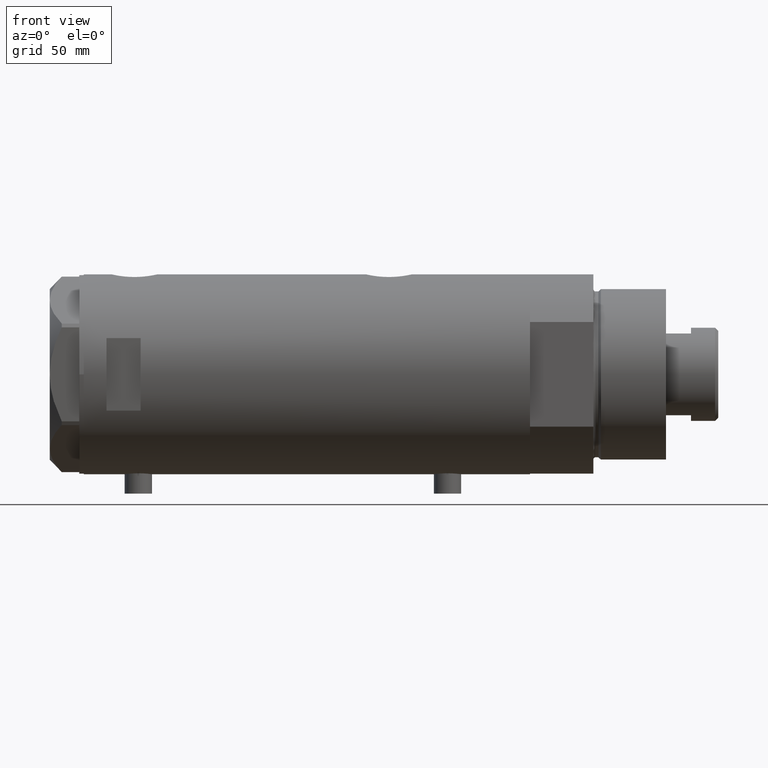
[diagram: clean part render]
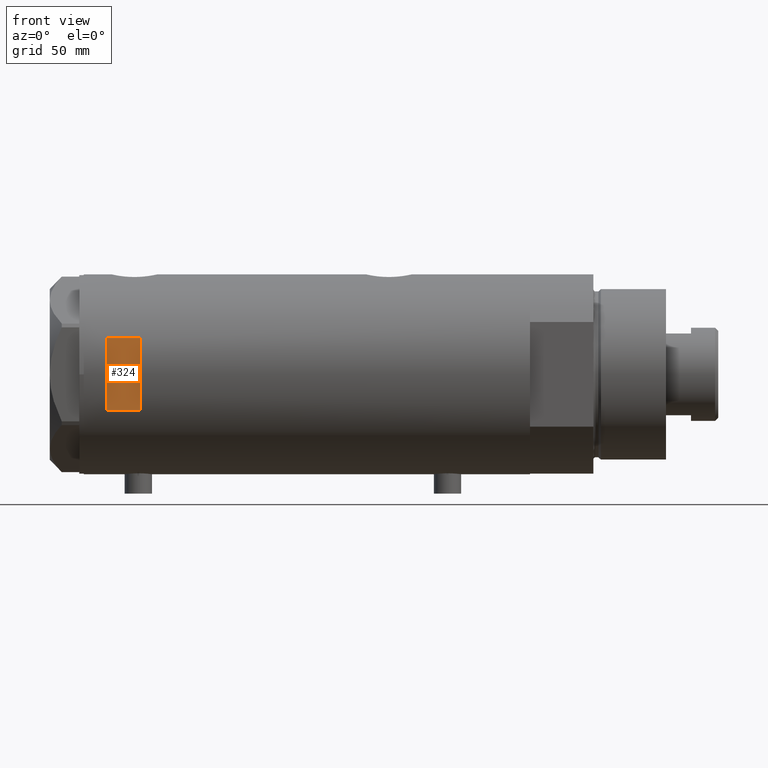
[diagram: same view with one face highlighted and labeled with its STEP entity id]
A machine part, front view. The second image highlights one B-rep face of the part: STEP entity #324.
In plain terms, the highlighted planar face has unit normal (-0, 1, 0).
Its self-contained STEP definition (entity closure, byte-faithful):
#215 = LINE ( 'NONE', #932, #233 ) ;
#233 = VECTOR ( 'NONE', #236, 1000.000000000000000 ) ;
#236 = DIRECTION ( 'NONE',  ( 1.000000000000000000, -0.000000000000000000, -0.000000000000000000 ) ) ;
#282 = CARTESIAN_POINT ( 'NONE',  ( -15.96871942267132027, -40.99999999999999289, 73.19999999999998863 ) ) ;
#324 = ADVANCED_FACE ( 'NONE', ( #2511 ), #3938, .F. ) ;
#329 = LINE ( 'NONE', #2052, #4510 ) ;
#485 = DIRECTION ( 'NONE',  ( 0.000000000000000000, 0.000000000000000000, 1.000000000000000000 ) ) ;
#492 = EDGE_CURVE ( 'NONE', #4175, #611, #1874, .T. ) ;
#611 = VERTEX_POINT ( 'NONE', #282 ) ;
#704 = VERTEX_POINT ( 'NONE', #779 ) ;
#779 = CARTESIAN_POINT ( 'NONE',  ( 15.96871942267132027, -40.99999999999999289, 73.19999999999998863 ) ) ;
#826 = CARTESIAN_POINT ( 'NONE',  ( 15.96871942267132027, -40.99999999999999289, -98.20000000000000284 ) ) ;
#883 = DIRECTION ( 'NONE',  ( 0.000000000000000000, 1.000000000000000000, 0.000000000000000000 ) ) ;
#932 = CARTESIAN_POINT ( 'NONE',  ( -44.00000000000000000, -40.99999999999999289, 88.20000000000000284 ) ) ;
#1017 = EDGE_CURVE ( 'NONE', #4175, #3097, #215, .T. ) ;
#1550 = LINE ( 'NONE', #826, #3619 ) ;
#1630 = VECTOR ( 'NONE', #3269, 1000.000000000000000 ) ;
#1802 = ORIENTED_EDGE ( 'NONE', *, *, #3137, .T. ) ;
#1834 = ORIENTED_EDGE ( 'NONE', *, *, #1017, .F. ) ;
#1874 = LINE ( 'NONE', #3556, #1630 ) ;
#2052 = CARTESIAN_POINT ( 'NONE',  ( -44.00000000000000000, -40.99999999999999289, 73.20000000000000284 ) ) ;
#2127 = EDGE_LOOP ( 'NONE', ( #4219, #3585, #1802, #1834 ) ) ;
#2167 = CARTESIAN_POINT ( 'NONE',  ( 15.96871942267132027, -40.99999999999999289, 88.20000000000000284 ) ) ;
#2511 = FACE_OUTER_BOUND ( 'NONE', #2127, .T. ) ;
#2728 = DIRECTION ( 'NONE',  ( 1.000000000000000000, -0.000000000000000000, -0.000000000000000000 ) ) ;
#2746 = CARTESIAN_POINT ( 'NONE',  ( -15.96871942267132027, -40.99999999999999289, 88.20000000000000284 ) ) ;
#3097 = VERTEX_POINT ( 'NONE', #2167 ) ;
#3137 = EDGE_CURVE ( 'NONE', #704, #3097, #1550, .T. ) ;
#3269 = DIRECTION ( 'NONE',  ( -0.000000000000000000, -0.000000000000000000, -1.000000000000000000 ) ) ;
#3450 = AXIS2_PLACEMENT_3D ( 'NONE', #4049, #883, #4139 ) ;
#3556 = CARTESIAN_POINT ( 'NONE',  ( -15.96871942267132027, -40.99999999999999289, -98.20000000000000284 ) ) ;
#3585 = ORIENTED_EDGE ( 'NONE', *, *, #4167, .T. ) ;
#3619 = VECTOR ( 'NONE', #485, 1000.000000000000000 ) ;
#3938 = PLANE ( 'NONE',  #3450 ) ;
#4049 = CARTESIAN_POINT ( 'NONE',  ( -44.00000000000000000, -40.99999999999999289, 88.20000000000000284 ) ) ;
#4139 = DIRECTION ( 'NONE',  ( 0.000000000000000000, -0.000000000000000000, 1.000000000000000000 ) ) ;
#4167 = EDGE_CURVE ( 'NONE', #611, #704, #329, .T. ) ;
#4175 = VERTEX_POINT ( 'NONE', #2746 ) ;
#4219 = ORIENTED_EDGE ( 'NONE', *, *, #492, .T. ) ;
#4510 = VECTOR ( 'NONE', #2728, 1000.000000000000000 ) ;